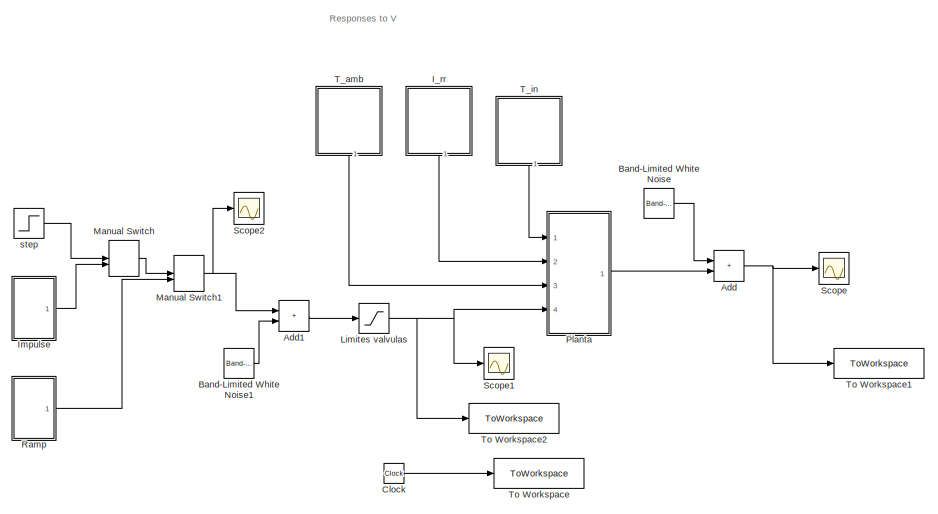
[diagram: root canvas - part 1/2, left side, full height]
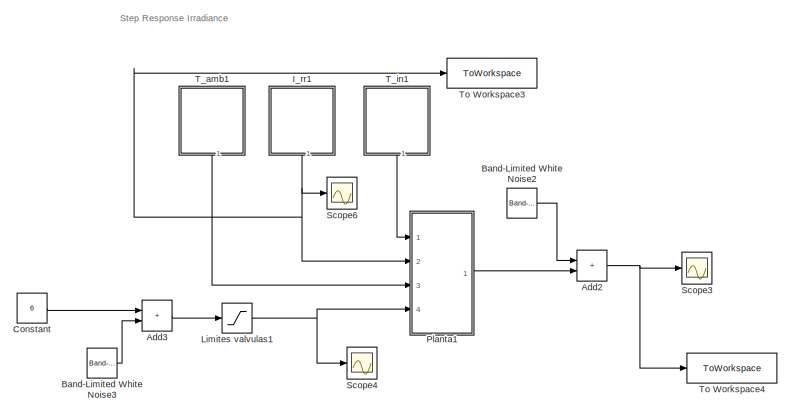
[diagram: root canvas - part 2/2, right side, full height]
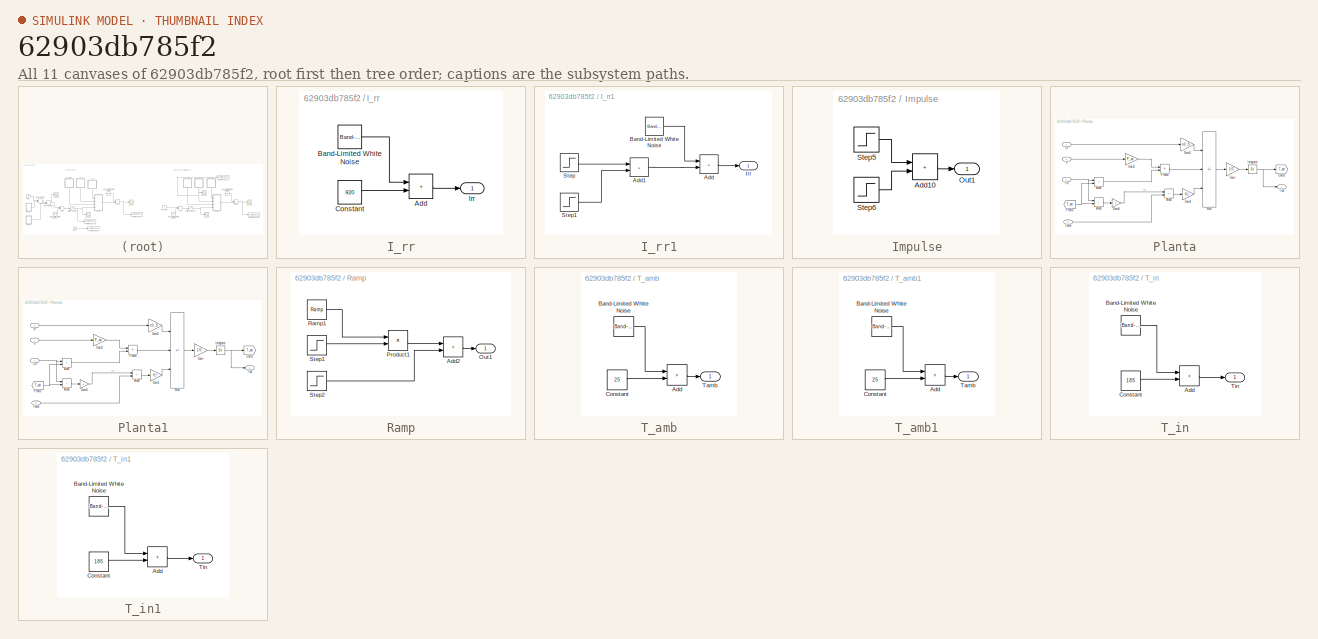
[diagram: thumbnail index - all 11 canvases of the model, root first then tree order]
MODEL slx_62903db785f2
KIND model
CONFIG AbsTol = auto
CONFIG EnableMultiTasking = off
CONFIG FixedStep = auto
CONFIG MaxStep = auto
CONFIG MinStep = auto
CONFIG RelTol = 1e-3
CONFIG SampleTimeConstraint = Unconstrained
CONFIG Solver = VariableStepAuto
CONFIG SolverName = VariableStepAuto
CONFIG StartTime = 0.0
CONFIG StopTime = 25
BLOCK [Sum] Add
  IconShape = rectangular
  Ports = [2, 1]
BLOCK [Sum] Add1
  IconShape = rectangular
  Ports = [2, 1]
BLOCK [Sum] Add2
  IconShape = rectangular
  Ports = [2, 1]
BLOCK [Sum] Add3
  IconShape = rectangular
  Ports = [2, 1]
BLOCK [Reference] Band-Limited White Noise  REF=simulink/Sources/Band-Limited
White Noise
  Ports = [0, 1]
  SourceBlock = simulink/Sources/Band-Limited\nWhite Noise
  SourceType = Band-Limited White Noise.
BLOCK [Reference] Band-Limited White Noise1  REF=simulink/Sources/Band-Limited
White Noise
  Ports = [0, 1]
  SourceBlock = simulink/Sources/Band-Limited\nWhite Noise
  SourceType = Band-Limited White Noise.
BLOCK [Reference] Band-Limited White Noise2  REF=simulink/Sources/Band-Limited
White Noise
  Ports = [0, 1]
  SourceBlock = simulink/Sources/Band-Limited\nWhite Noise
  SourceType = Band-Limited White Noise.
BLOCK [Reference] Band-Limited White Noise3  REF=simulink/Sources/Band-Limited
White Noise
  Ports = [0, 1]
  SourceBlock = simulink/Sources/Band-Limited\nWhite Noise
  SourceType = Band-Limited White Noise.
BLOCK [Clock] Clock
BLOCK [Constant] Constant
  Value = 6
BLOCK [SubSystem] I_rr
  Ports = [0, 1]
BLOCK [Sum] I_rr/Add
  IconShape = rectangular
  Ports = [2, 1]
BLOCK [Reference] I_rr/Band-Limited White Noise  REF=simulink/Sources/Band-Limited
White Noise
  Ports = [0, 1]
  SourceBlock = simulink/Sources/Band-Limited\nWhite Noise
  SourceType = Band-Limited White Noise.
BLOCK [Constant] I_rr/Constant
  Value = 920
BLOCK [Outport] I_rr/Irr
BLOCK [SubSystem] I_rr1
  Ports = [0, 1]
BLOCK [Sum] I_rr1/Add
  IconShape = rectangular
  Ports = [2, 1]
BLOCK [Sum] I_rr1/Add1
  IconShape = rectangular
  Ports = [2, 1]
BLOCK [Reference] I_rr1/Band-Limited White Noise  REF=simulink/Sources/Band-Limited
White Noise
  Ports = [0, 1]
  SourceBlock = simulink/Sources/Band-Limited\nWhite Noise
  SourceType = Band-Limited White Noise.
BLOCK [Outport] I_rr1/Irr
BLOCK [Step] I_rr1/Step
  After = 600
  Before = 840
  SampleTime = 0
  Time = 5
BLOCK [Step] I_rr1/Step1
  After = 200
  SampleTime = 0
  Time = 15
BLOCK [SubSystem] Impulse
  Ports = [0, 1]
BLOCK [Sum] Impulse/Add10
  IconShape = rectangular
  Ports = [2, 1]
BLOCK [Outport] Impulse/Out1
BLOCK [Step] Impulse/Step5
  After = 12
  Before = 2
  SampleTime = 0
  Time = 5
BLOCK [Step] Impulse/Step6
  After = -10
  SampleTime = 0
  Time = 8
BLOCK [Saturate] Limites valvulas
  LowerLimit = 2
  UpperLimit = 12
BLOCK [Saturate] Limites valvulas1
  LowerLimit = 2
  UpperLimit = 12
BLOCK [ManualSwitch] Manual Switch
BLOCK [ManualSwitch] Manual Switch1
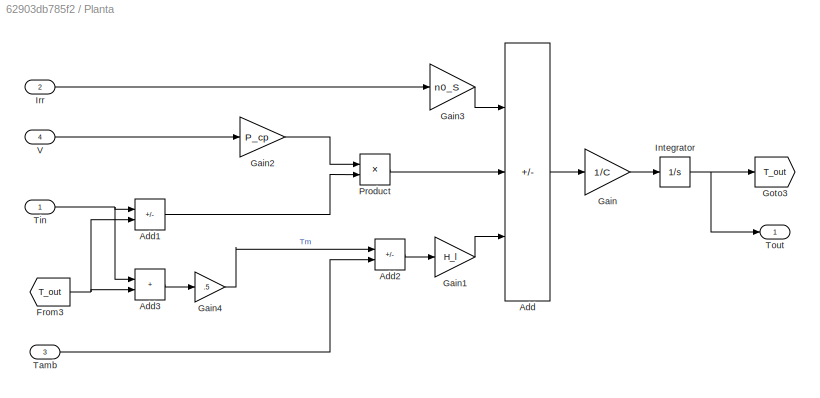
BLOCK [SubSystem] Planta
  Ports = [4, 1]
BLOCK [Sum] Planta/Add
  IconShape = rectangular
  Inputs = +--
  Ports = [3, 1]
BLOCK [Sum] Planta/Add1
  IconShape = rectangular
  Inputs = -+
  Ports = [2, 1]
BLOCK [Sum] Planta/Add2
  IconShape = rectangular
  Inputs = +-
  Ports = [2, 1]
BLOCK [Sum] Planta/Add3
  IconShape = rectangular
  Ports = [2, 1]
BLOCK [From] Planta/From3
  GotoTag = T_out
BLOCK [Gain] Planta/Gain
  Gain = 1/C
BLOCK [Gain] Planta/Gain1
  Gain = H_l
BLOCK [Gain] Planta/Gain2
  Gain = P_cp
BLOCK [Gain] Planta/Gain3
  Gain = n0_S
BLOCK [Gain] Planta/Gain4
  Gain = .5
BLOCK [Goto] Planta/Goto3
  GotoTag = T_out
BLOCK [Integrator] Planta/Integrator
  InitialCondition = Tinit
  Ports = [1, 1]
BLOCK [Inport] Planta/Irr
  Port = 2
BLOCK [Product] Planta/Product
  Ports = [2, 1]
BLOCK [Inport] Planta/Tamb
  Port = 3
BLOCK [Inport] Planta/Tin
BLOCK [Outport] Planta/Tout
BLOCK [Inport] Planta/V
  Port = 4
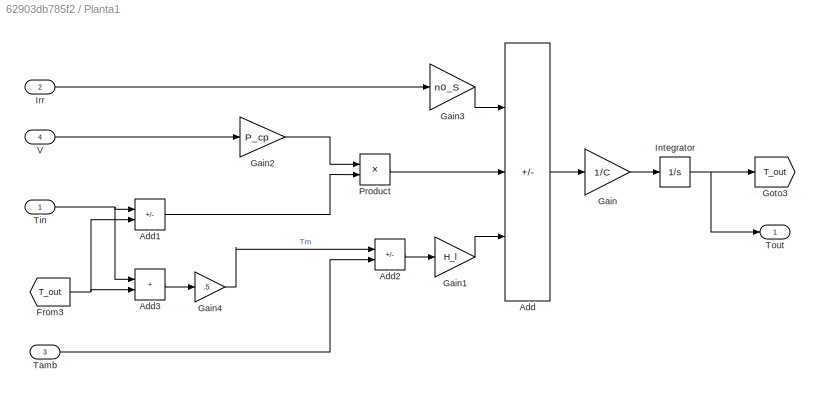
BLOCK [SubSystem] Planta1
  Ports = [4, 1]
BLOCK [Sum] Planta1/Add
  IconShape = rectangular
  Inputs = +--
  Ports = [3, 1]
BLOCK [Sum] Planta1/Add1
  IconShape = rectangular
  Inputs = -+
  Ports = [2, 1]
BLOCK [Sum] Planta1/Add2
  IconShape = rectangular
  Inputs = +-
  Ports = [2, 1]
BLOCK [Sum] Planta1/Add3
  IconShape = rectangular
  Ports = [2, 1]
BLOCK [From] Planta1/From3
  GotoTag = T_out
BLOCK [Gain] Planta1/Gain
  Gain = 1/C
BLOCK [Gain] Planta1/Gain1
  Gain = H_l
BLOCK [Gain] Planta1/Gain2
  Gain = P_cp
BLOCK [Gain] Planta1/Gain3
  Gain = n0_S
BLOCK [Gain] Planta1/Gain4
  Gain = .5
BLOCK [Goto] Planta1/Goto3
  GotoTag = T_out
BLOCK [Integrator] Planta1/Integrator
  InitialCondition = Tinit
  Ports = [1, 1]
BLOCK [Inport] Planta1/Irr
  Port = 2
BLOCK [Product] Planta1/Product
  Ports = [2, 1]
BLOCK [Inport] Planta1/Tamb
  Port = 3
BLOCK [Inport] Planta1/Tin
BLOCK [Outport] Planta1/Tout
BLOCK [Inport] Planta1/V
  Port = 4
BLOCK [SubSystem] Ramp
  Ports = [0, 1]
BLOCK [Sum] Ramp/Add2
  IconShape = rectangular
  Ports = [2, 1]
BLOCK [Outport] Ramp/Out1
BLOCK [Product] Ramp/Product1
  Ports = [2, 1]
BLOCK [Reference] Ramp/Ramp1  REF=simulink/Sources/Ramp
  Ports = [0, 1]
  SourceBlock = simulink/Sources/Ramp
  SourceType = Ramp
BLOCK [Step] Ramp/Step1
  After = 0
  Before = 1
  SampleTime = 0
  Time = 8
BLOCK [Step] Ramp/Step2
  After = 2
  SampleTime = 0
  Time = 8
BLOCK [Scope] Scope
  Floating = off
  NumInputPorts = 1
  Ports = [1]
  ScopeSpecificationString = Simulink.scopes.TimeScopeBlockCfg('CurrentConfiguration', extmgr.ConfigurationSet(extmgr.Configuration('Core','General UI',true),extmgr.Configuration('Core','Source UI',true),extmgr.Configuration('Sources','WiredSimulink',true),extmgr.Configuration('Visuals','Time Domain',true,'SerializedDisplays',{struct('MinYLimReal','258.03915','MaxYLimReal','277.69806','YLabelReal','','MinYLimMag','258.03915',...<+1381ch>
BLOCK [Scope] Scope1
  Floating = off
  NumInputPorts = 1
  Ports = [1]
  ScopeSpecificationString = Simulink.scopes.TimeScopeBlockCfg('CurrentConfiguration', extmgr.ConfigurationSet(extmgr.Configuration('Core','General UI',true),extmgr.Configuration('Core','Source UI',true),extmgr.Configuration('Sources','WiredSimulink',true,'DataLoggingVariableName','ScopeData1'),extmgr.Configuration('Visuals','Time Domain',true,'SerializedDisplays',{struct('MinYLimReal','6.82922','MaxYLimReal','8.15653','YLabe...<+1417ch>
BLOCK [Scope] Scope2
  Floating = off
  NumInputPorts = 1
  Ports = [1]
  ScopeSpecificationString = Simulink.scopes.TimeScopeBlockCfg('CurrentConfiguration', extmgr.ConfigurationSet(extmgr.Configuration('Core','General UI',true),extmgr.Configuration('Core','Source UI',true),extmgr.Configuration('Sources','WiredSimulink',true,'DataLoggingVariableName','ScopeData1'),extmgr.Configuration('Visuals','Time Domain',true,'SerializedDisplays',{struct('MinYLimReal','6.875','MaxYLimReal','8.125','YLabelRea...<+1355ch>
BLOCK [Scope] Scope3
  Floating = off
  NumInputPorts = 1
  Ports = [1]
  ScopeSpecificationString = Simulink.scopes.TimeScopeBlockCfg('CurrentConfiguration', extmgr.ConfigurationSet(extmgr.Configuration('Core','General UI',true),extmgr.Configuration('Core','Source UI',true),extmgr.Configuration('Sources','WiredSimulink',true,'DataLoggingVariableName','ScopeData2'),extmgr.Configuration('Visuals','Time Domain',true,'SerializedDisplays',{struct('MinYLimReal','250.05598','MaxYLimReal','284.77894','Y...<+1421ch>
BLOCK [Scope] Scope4
  Floating = off
  NumInputPorts = 1
  Ports = [1]
  ScopeSpecificationString = Simulink.scopes.TimeScopeBlockCfg('CurrentConfiguration', extmgr.ConfigurationSet(extmgr.Configuration('Core','General UI',true),extmgr.Configuration('Core','Source UI',true),extmgr.Configuration('Sources','WiredSimulink',true,'DataLoggingVariableName','ScopeData3'),extmgr.Configuration('Visuals','Time Domain',true,'SerializedDisplays',{struct('MinYLimReal','6.82922','MaxYLimReal','8.15653','YLabe...<+1417ch>
BLOCK [Scope] Scope6
  Floating = off
  NumInputPorts = 1
  Ports = [1]
  ScopeSpecificationString = Simulink.scopes.TimeScopeBlockCfg('CurrentConfiguration', extmgr.ConfigurationSet(extmgr.Configuration('Core','General UI',true),extmgr.Configuration('Core','Source UI',true),extmgr.Configuration('Sources','WiredSimulink',true,'DataLoggingVariableName','ScopeData5'),extmgr.Configuration('Visuals','Time Domain',true,'SerializedDisplays',{struct('MinYLimReal','569.97919','MaxYLimReal','870.01388','Y...<+1378ch>
BLOCK [SubSystem] T_amb
  Ports = [0, 1]
BLOCK [Sum] T_amb/Add
  IconShape = rectangular
  Ports = [2, 1]
BLOCK [Reference] T_amb/Band-Limited White Noise  REF=simulink/Sources/Band-Limited
White Noise
  Ports = [0, 1]
  SourceBlock = simulink/Sources/Band-Limited\nWhite Noise
  SourceType = Band-Limited White Noise.
BLOCK [Constant] T_amb/Constant
  Value = 25
BLOCK [Outport] T_amb/Tamb
BLOCK [SubSystem] T_amb1
  Ports = [0, 1]
BLOCK [Sum] T_amb1/Add
  IconShape = rectangular
  Ports = [2, 1]
BLOCK [Reference] T_amb1/Band-Limited White Noise  REF=simulink/Sources/Band-Limited
White Noise
  Ports = [0, 1]
  SourceBlock = simulink/Sources/Band-Limited\nWhite Noise
  SourceType = Band-Limited White Noise.
BLOCK [Constant] T_amb1/Constant
  Value = 25
BLOCK [Outport] T_amb1/Tamb
BLOCK [SubSystem] T_in
  Ports = [0, 1]
BLOCK [Sum] T_in/Add
  IconShape = rectangular
  Ports = [2, 1]
BLOCK [Reference] T_in/Band-Limited White Noise  REF=simulink/Sources/Band-Limited
White Noise
  Ports = [0, 1]
  SourceBlock = simulink/Sources/Band-Limited\nWhite Noise
  SourceType = Band-Limited White Noise.
BLOCK [Constant] T_in/Constant
  Value = 185
BLOCK [Outport] T_in/Tin
BLOCK [SubSystem] T_in1
  Ports = [0, 1]
BLOCK [Sum] T_in1/Add
  IconShape = rectangular
  Ports = [2, 1]
BLOCK [Reference] T_in1/Band-Limited White Noise  REF=simulink/Sources/Band-Limited
White Noise
  Ports = [0, 1]
  SourceBlock = simulink/Sources/Band-Limited\nWhite Noise
  SourceType = Band-Limited White Noise.
BLOCK [Constant] T_in1/Constant
  Value = 185
BLOCK [Outport] T_in1/Tin
BLOCK [ToWorkspace] To Workspace
  FixptAsFi = on
  MaxDataPoints = inf
  Ports = [1]
  SampleTime = -1
  VariableName = time
BLOCK [ToWorkspace] To Workspace1
  FixptAsFi = on
  MaxDataPoints = inf
  Ports = [1]
  SampleTime = -1
  SaveFormat = Timeseries
  VariableName = outV
BLOCK [ToWorkspace] To Workspace2
  FixptAsFi = on
  MaxDataPoints = inf
  Ports = [1]
  SampleTime = -1
  SaveFormat = Timeseries
  VariableName = inV
BLOCK [ToWorkspace] To Workspace3
  FixptAsFi = on
  MaxDataPoints = inf
  Ports = [1]
  SampleTime = -1
  SaveFormat = Timeseries
  VariableName = inIrr
BLOCK [ToWorkspace] To Workspace4
  FixptAsFi = on
  MaxDataPoints = inf
  Ports = [1]
  SampleTime = -1
  SaveFormat = Timeseries
  VariableName = outIrr
BLOCK [Step] step
  After = 7
  Before = 8
  SampleTime = 0
  Time = 5
ANNOTATION (root): Responses to V
ANNOTATION (root): Step Response Irradiance
LINE Add1:1 -> Limites valvulas:1
NET Add2:1 -> Scope3:1, To Workspace4:1
LINE Add3:1 -> Limites valvulas1:1
NET Add:1 -> Scope:1, To Workspace1:1
LINE Band-Limited White Noise1:1 -> Add1:2
LINE Band-Limited White Noise2:1 -> Add2:1
LINE Band-Limited White Noise3:1 -> Add3:2
LINE Band-Limited White Noise:1 -> Add:1
LINE Clock:1 -> To Workspace:1
LINE Constant:1 -> Add3:1
LINE I_rr/Add:1 -> I_rr/Irr:1
LINE I_rr/Band-Limited White Noise:1 -> I_rr/Add:1
LINE I_rr/Constant:1 -> I_rr/Add:2
LINE I_rr1/Add1:1 -> I_rr1/Add:2
LINE I_rr1/Add:1 -> I_rr1/Irr:1
LINE I_rr1/Band-Limited White Noise:1 -> I_rr1/Add:1
LINE I_rr1/Step1:1 -> I_rr1/Add1:2
LINE I_rr1/Step:1 -> I_rr1/Add1:1
NET I_rr1:1 -> Planta1:2, Scope6:1, To Workspace3:1
LINE I_rr:1 -> Planta:2
LINE Impulse/Add10:1 -> Impulse/Out1:1
LINE Impulse/Step5:1 -> Impulse/Add10:1
LINE Impulse/Step6:1 -> Impulse/Add10:2
LINE Impulse:1 -> Manual Switch:2
NET Limites valvulas1:1 -> Planta1:4, Scope4:1
NET Limites valvulas:1 -> Planta:4, Scope1:1, To Workspace2:1
NET Manual Switch1:1 -> Add1:1, Scope2:1
LINE Manual Switch:1 -> Manual Switch1:1
LINE Planta/Add1:1 -> Planta/Product:2
LINE Planta/Add2:1 -> Planta/Gain1:1
LINE Planta/Add3:1 -> Planta/Gain4:1
LINE Planta/Add:1 -> Planta/Gain:1
NET Planta/From3:1 -> Planta/Add1:2, Planta/Add3:2
LINE Planta/Gain1:1 -> Planta/Add:3
LINE Planta/Gain2:1 -> Planta/Product:1
LINE Planta/Gain3:1 -> Planta/Add:1
LINE Planta/Gain4:1 -> Planta/Add2:1
LINE Planta/Gain:1 -> Planta/Integrator:1
NET Planta/Integrator:1 -> Planta/Goto3:1, Planta/Tout:1
LINE Planta/Irr:1 -> Planta/Gain3:1
LINE Planta/Product:1 -> Planta/Add:2
LINE Planta/Tamb:1 -> Planta/Add2:2
NET Planta/Tin:1 -> Planta/Add1:1, Planta/Add3:1
LINE Planta/V:1 -> Planta/Gain2:1
LINE Planta1/Add1:1 -> Planta1/Product:2
LINE Planta1/Add2:1 -> Planta1/Gain1:1
LINE Planta1/Add3:1 -> Planta1/Gain4:1
LINE Planta1/Add:1 -> Planta1/Gain:1
NET Planta1/From3:1 -> Planta1/Add1:2, Planta1/Add3:2
LINE Planta1/Gain1:1 -> Planta1/Add:3
LINE Planta1/Gain2:1 -> Planta1/Product:1
LINE Planta1/Gain3:1 -> Planta1/Add:1
LINE Planta1/Gain4:1 -> Planta1/Add2:1
LINE Planta1/Gain:1 -> Planta1/Integrator:1
NET Planta1/Integrator:1 -> Planta1/Goto3:1, Planta1/Tout:1
LINE Planta1/Irr:1 -> Planta1/Gain3:1
LINE Planta1/Product:1 -> Planta1/Add:2
LINE Planta1/Tamb:1 -> Planta1/Add2:2
NET Planta1/Tin:1 -> Planta1/Add1:1, Planta1/Add3:1
LINE Planta1/V:1 -> Planta1/Gain2:1
LINE Planta1:1 -> Add2:2
LINE Planta:1 -> Add:2
LINE Ramp/Add2:1 -> Ramp/Out1:1
LINE Ramp/Product1:1 -> Ramp/Add2:1
LINE Ramp/Ramp1:1 -> Ramp/Product1:1
LINE Ramp/Step1:1 -> Ramp/Product1:2
LINE Ramp/Step2:1 -> Ramp/Add2:2
LINE Ramp:1 -> Manual Switch1:2
LINE T_amb/Add:1 -> T_amb/Tamb:1
LINE T_amb/Band-Limited White Noise:1 -> T_amb/Add:1
LINE T_amb/Constant:1 -> T_amb/Add:2
LINE T_amb1/Add:1 -> T_amb1/Tamb:1
LINE T_amb1/Band-Limited White Noise:1 -> T_amb1/Add:1
LINE T_amb1/Constant:1 -> T_amb1/Add:2
LINE T_amb1:1 -> Planta1:3
LINE T_amb:1 -> Planta:3
LINE T_in/Add:1 -> T_in/Tin:1
LINE T_in/Band-Limited White Noise:1 -> T_in/Add:1
LINE T_in/Constant:1 -> T_in/Add:2
LINE T_in1/Add:1 -> T_in1/Tin:1
LINE T_in1/Band-Limited White Noise:1 -> T_in1/Add:1
LINE T_in1/Constant:1 -> T_in1/Add:2
LINE T_in1:1 -> Planta1:1
LINE T_in:1 -> Planta:1
LINE step:1 -> Manual Switch:1
note: NET lines group one-source signal fan-out (src -> all destinations, sorted); 1:1 wires keep LINE
